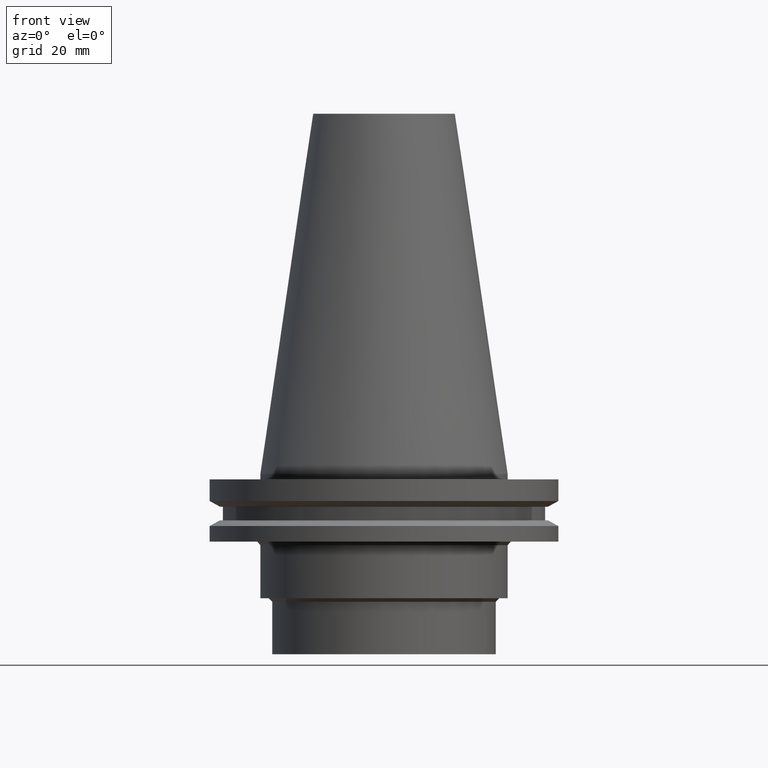
[diagram: clean part render]
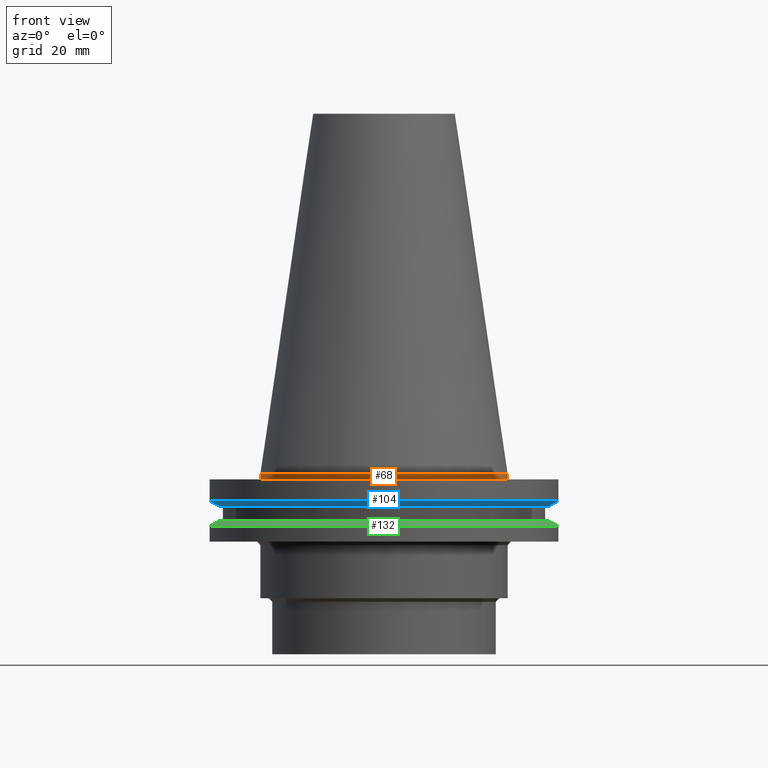
[diagram: same view with three faces highlighted in distinct colors, each labeled with its STEP entity id]
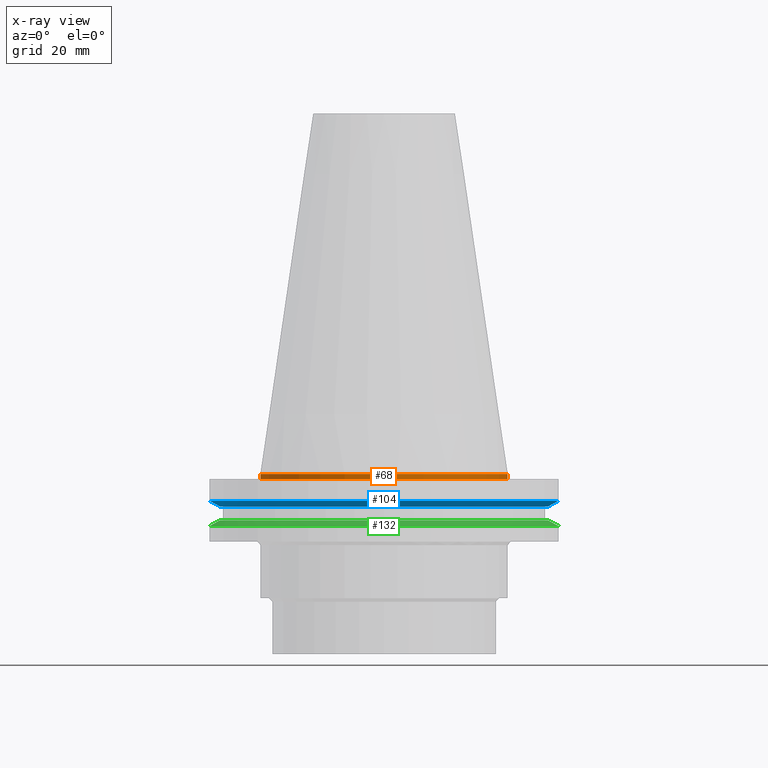
[diagram: x-ray of the same camera — body ghosted, the three highlighted faces saturated]
A machine part, front view with three faces highlighted in distinct colors.
The next image is the same camera in x-ray (body ghosted, the three faces saturated) — at least one of them is partly hidden behind the body in this view.
Their STEP definitions:

[orange] entity #68 — the highlighted cylindrical surface (bore or boss wall) has radius 34.925 mm, axis along (0, 0, -1).
#68=ADVANCED_FACE('Unnamed[1]',(#179,#180),#181,.T.);
#72=EDGE_CURVE('Unnamed[1]',#186,#186,#187,.T.);
#109=EDGE_CURVE('Unnamed[1]',#244,#244,#245,.T.);
#179=FACE_BOUND('',#331,.T.);
#180=FACE_BOUND('',#332,.T.);
#181=CYLINDRICAL_SURFACE('',#333,34.925);
#186=VERTEX_POINT('',#340);
#187=CIRCLE('',#341,34.925);
#244=VERTEX_POINT('',#413);
#245=CIRCLE('',#414,34.9249999999999);
#331=EDGE_LOOP('',(#505));
#332=EDGE_LOOP('',(#506));
#333=AXIS2_PLACEMENT_3D('',#507,#508,#509);
#340=CARTESIAN_POINT('',(4.82986938111671E-029,34.925,-7.9153078510529E-013));
#341=AXIS2_PLACEMENT_3D('',#513,#514,#515);
#413=CARTESIAN_POINT('',(9.18485099360509E-017,34.925,-1.49999999999999));
#414=AXIS2_PLACEMENT_3D('',#578,#579,#580);
#505=ORIENTED_EDGE('',*,*,#109,.F.);
#506=ORIENTED_EDGE('',*,*,#72,.T.);
#507=CARTESIAN_POINT('',(4.59242549680518E-017,2.91360020464664E-014,-0.750000000000426));
#508=DIRECTION('',(6.12323399573677E-017,9.31673031619391E-016,-1.0));
#509=DIRECTION('',(-6.18756725319994E-032,1.0,9.31673031619391E-016));
#513=CARTESIAN_POINT('',(5.04695054463486E-029,2.84372472727522E-014,-8.24229573481716E-013));
#514=DIRECTION('',(6.12323399573677E-017,9.31673031619414E-016,-1.0));
#515=DIRECTION('',(-6.18756725319993E-032,1.0,9.31673031619414E-016));
#578=CARTESIAN_POINT('',(9.18485099360532E-017,2.98347568201806E-014,-1.50000000000003));
#579=DIRECTION('',(6.12323399573677E-017,9.31673031619392E-016,-1.0));
#580=DIRECTION('',(-6.18756725319994E-032,1.0,9.31673031619392E-016));

[blue] entity #104 — the highlighted conical surface has half-angle 60 deg.
#77=EDGE_CURVE('Unnamed[1]',#194,#194,#195,.T.);
#98=EDGE_CURVE('Unnamed[1]',#226,#226,#227,.T.);
#104=ADVANCED_FACE('Unnamed[1]',(#235,#236),#237,.T.);
#194=VERTEX_POINT('',#350);
#195=CIRCLE('',#351,49.2125);
#226=VERTEX_POINT('',#391);
#227=CIRCLE('',#392,46.4325584538519);
#235=FACE_BOUND('',#402,.T.);
#236=FACE_BOUND('',#403,.T.);
#237=CONICAL_SURFACE('',#404,47.822529226926,1.04719755119663);
#350=CARTESIAN_POINT('',(4.65059621976208E-016,49.2125,-7.59500000000002));
#351=AXIS2_PLACEMENT_3D('',#522,#523,#524);
#391=CARTESIAN_POINT('',(5.63337527607778E-016,46.432558453852,-9.19999999999993));
#392=AXIS2_PLACEMENT_3D('',#557,#558,#559);
#402=EDGE_LOOP('',(#567));
#403=EDGE_LOOP('',(#568));
#404=AXIS2_PLACEMENT_3D('',#569,#570,#571);
#522=CARTESIAN_POINT('',(4.65059621976212E-016,3.55133039479009E-014,-7.59500000000007));
#523=DIRECTION('',(6.12323399573677E-017,9.31673031619395E-016,-1.0));
#524=DIRECTION('',(-6.18756725319995E-032,1.0,9.31673031619395E-016));
#557=CARTESIAN_POINT('',(5.6333752760778E-016,3.70086391636499E-014,-9.19999999999997));
#558=DIRECTION('',(6.12323399573677E-017,9.31673031619417E-016,-1.0));
#559=DIRECTION('',(-6.18756725320002E-032,1.0,9.31673031619417E-016));
#567=ORIENTED_EDGE('',*,*,#98,.F.);
#568=ORIENTED_EDGE('',*,*,#77,.T.);
#569=CARTESIAN_POINT('',(5.14198574791996E-016,3.62609715557754E-014,-8.39750000000002));
#570=DIRECTION('',(-6.12323399573677E-017,-9.31673031619406E-016,1.0));
#571=DIRECTION('',(-6.18756725319998E-032,1.0,9.31673031619406E-016));

[green] entity #132 — the highlighted conical surface has half-angle 60 deg.
#84=EDGE_CURVE('Unnamed[1]',#205,#205,#206,.T.);
#89=EDGE_CURVE('Unnamed[1]',#212,#212,#213,.T.);
#132=ADVANCED_FACE('Unnamed[1]',(#279,#280),#281,.T.);
#205=VERTEX_POINT('',#364);
#206=CIRCLE('',#365,49.2124999999999);
#212=VERTEX_POINT('',#373);
#213=CIRCLE('',#374,46.4325584538518);
#279=FACE_BOUND('',#457,.T.);
#280=FACE_BOUND('',#458,.T.);
#281=CONICAL_SURFACE('',#459,47.8225292269259,1.04719755119659);
#364=CARTESIAN_POINT('',(8.96747618675648E-016,49.2124999999999,-14.645));
#365=AXIS2_PLACEMENT_3D('',#534,#535,#536);
#373=CARTESIAN_POINT('',(7.98469713044071E-016,46.4325584538519,-13.04));
#374=AXIS2_PLACEMENT_3D('',#542,#543,#544);
#457=EDGE_LOOP('',(#617));
#458=EDGE_LOOP('',(#618));
#459=AXIS2_PLACEMENT_3D('',#619,#620,#621);
#534=CARTESIAN_POINT('',(8.96747618675651E-016,4.20815988208176E-014,-14.645));
#535=DIRECTION('',(6.12323399573677E-017,9.31673031619398E-016,-1.0));
#536=DIRECTION('',(-6.18756725319996E-032,1.0,9.31673031619398E-016));
#542=CARTESIAN_POINT('',(7.98469713044074E-016,4.05862636050685E-014,-13.04));
#543=DIRECTION('',(6.12323399573677E-017,9.31673031619419E-016,-1.0));
#544=DIRECTION('',(-6.18756725319984E-032,1.0,9.31673031619419E-016));
#617=ORIENTED_EDGE('',*,*,#84,.F.);
#618=ORIENTED_EDGE('',*,*,#89,.T.);
#619=CARTESIAN_POINT('',(8.47608665859862E-016,4.1333931212943E-014,-13.8425));
#620=DIRECTION('',(6.12323399573677E-017,9.31673031619408E-016,-1.0));
#621=DIRECTION('',(-6.1875672532E-032,1.0,9.31673031619408E-016));